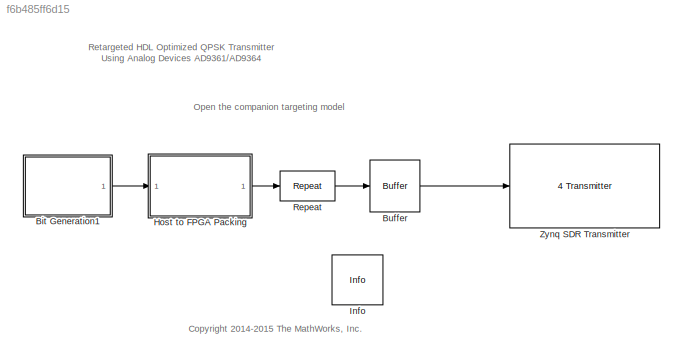
MODEL slx_f6b485ff6d15
KIND model
CONFIG AbsTol = auto
CONFIG FixedStep = auto
CONFIG InitFcn = sdrzQPSKTxFPGAretarget_params = zynqRadioQPSKTxFPGAAD9361AD9364SL_init;
CONFIG MaxStep = auto
CONFIG MinStep = auto
CONFIG PreLoadFcn = sdrzQPSKTxFPGAretarget_params = zynqRadioQPSKTxFPGAAD9361AD9364SL_init;
CONFIG RelTol = 1e-3
CONFIG SampleTimeConstraint = Unconstrained
CONFIG Solver = FixedStepDiscrete
CONFIG SolverMode = SingleTasking
CONFIG SolverName = FixedStepDiscrete
CONFIG StartTime = 0.0
CONFIG StopTime = inf
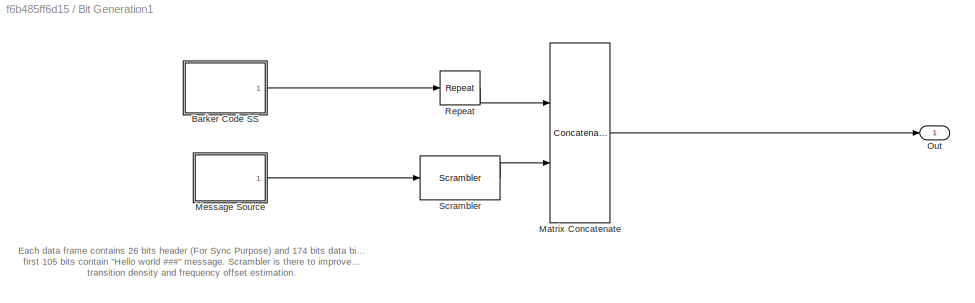
BLOCK [SubSystem] Bit Generation1
  Ports = [0, 1]
  RequestExecContextInheritance = off
  Variant = off
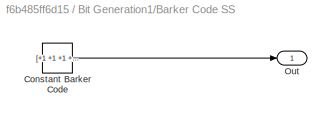
BLOCK [SubSystem] Bit Generation1/Barker Code SS
  Ports = [0, 1]
  RequestExecContextInheritance = off
  Variant = off
BLOCK [Constant] Bit Generation1/Barker Code SS/Constant Barker Code
  OutDataTypeStr = double
  Value = [+1 +1 +1 +1 +1 -1 -1 +1 +1 -1 +1 -1 +1\n].' > 0  % Bipolar to Unipolar Conversion
  VectorParams1D = off
BLOCK [Outport] Bit Generation1/Barker Code SS/Out
  IconDisplay = Port number
BLOCK [Concatenate] Bit Generation1/Matrix Concatenate
  Mode = Multidimensional array
  Ports = [2, 1]
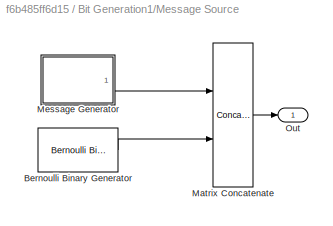
BLOCK [SubSystem] Bit Generation1/Message Source
  Ports = [0, 1]
  RequestExecContextInheritance = off
  Variant = off
BLOCK [Reference] Bit Generation1/Message Source/Bernoulli Binary Generator  REF=commrandsrc3/Bernoulli Binary
Generator
  Ports = [0, 1]
  SourceBlock = commrandsrc3/Bernoulli Binary\nGenerator
  SourceType = Bernoulli Binary Generator
BLOCK [Concatenate] Bit Generation1/Message Source/Matrix Concatenate
  Mode = Multidimensional array
  Ports = [2, 1]
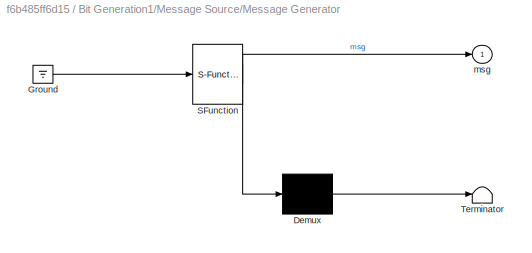
BLOCK [SubSystem] Bit Generation1/Message Source/Message Generator
  ErrorFcn = Stateflow.Translate.translate
  PermitHierarchicalResolution = ExplicitOnly
  Ports = [0, 1]
  RequestExecContextInheritance = off
  SFBlockType = MATLAB Function
  TreatAsAtomicUnit = on
  Variant = off
BLOCK [Demux] Bit Generation1/Message Source/Message Generator/ Demux 
  Outputs = 1
  Ports = [1, 1]
BLOCK [Ground] Bit Generation1/Message Source/Message Generator/ Ground 
BLOCK [S-Function] Bit Generation1/Message Source/Message Generator/ SFunction 
  EnableBusSupport = off
  FunctionName = sf_sfun
  PortCounts = [1 2]
  Ports = [1, 2]
  SFunctionDeploymentMode = off
  Tag = Stateflow S-Function zynqRadioQPSKTxFPGAAD9361AD9364RetargetSL 1
BLOCK [Terminator] Bit Generation1/Message Source/Message Generator/ Terminator 
BLOCK [Outport] Bit Generation1/Message Source/Message Generator/msg
  IconDisplay = Port number
BLOCK [Outport] Bit Generation1/Message Source/Out
  IconDisplay = Port number
BLOCK [Outport] Bit Generation1/Out
  IconDisplay = Port number
BLOCK [Reference] Bit Generation1/Repeat  REF=dspsigops/Repeat
  Ports = [1, 1]
  SourceBlock = dspsigops/Repeat
  SourceType = Repeat
  UserDataPersistent = on
BLOCK [Reference] Bit Generation1/Scrambler  REF=commsequence2/Scrambler
  Ports = [1, 1]
  SourceBlock = commsequence2/Scrambler
  SourceType = Scrambler
BLOCK [Buffer] Buffer
  N = 4000
  OutputFrames = off
  TreatMby1Signals = One channel
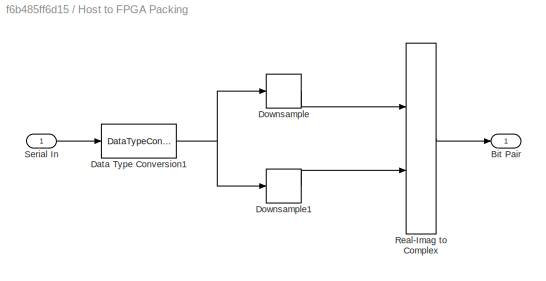
BLOCK [SubSystem] Host to FPGA Packing
  Ports = [1, 1]
  RequestExecContextInheritance = off
  Variant = off
BLOCK [Outport] Host to FPGA Packing/Bit Pair
  IconDisplay = Port number
BLOCK [DataTypeConversion] Host to FPGA Packing/Data Type Conversion1
  OutDataTypeStr = int16
  RndMeth = Floor
  SaturateOnIntegerOverflow = off
BLOCK [DownSample] Host to FPGA Packing/Downsample
  RateOptions = Allow multirate processing
  UserDataPersistent = on
BLOCK [DownSample] Host to FPGA Packing/Downsample1
  RateOptions = Allow multirate processing
  UserDataPersistent = on
  phase = 1
BLOCK [RealImagToComplex] Host to FPGA Packing/Real-Imag to Complex
  Ports = [2, 1]
BLOCK [Inport] Host to FPGA Packing/Serial In
  IconDisplay = Port number
BLOCK [Reference] Info  REF=sdrzblksprivate/Info
  Ports = []
  SourceBlock = sdrzblksprivate/Info
  SourceType = Info
BLOCK [Reference] Repeat  REF=dspsigops/Repeat
  Ports = [1, 1]
  SourceBlock = dspsigops/Repeat
  SourceType = Repeat
  UserDataPersistent = on
BLOCK [Reference] Zynq SDR Transmitter  REF=zc706fmc234_lib/ZC706 and 
FMCOMMS2//3//4 
Transmitter
  Ports = [1]
  SourceBlock = zc706fmc234_lib/ZC706 and \nFMCOMMS2//3//4 \nTransmitter
  SourceType = comm.internal.SDRTxZC706FMC234SL
ANNOTATION (root): <copyright redacted>
ANNOTATION (root): Open the companion targeting model
ANNOTATION (root): Retargeted HDL Optimized QPSK Transmitter Using Analog Devices AD9361/AD9364
ANNOTATION Bit Generation1: Each data frame contains 26 bits header (For Sync Purpose) and 174 bits data bits, first 105 bits contain "Hello world ###" message. Scrambler is there to improve data transition density and frequency offset estimation.
LINE Bit Generation1/Barker Code SS/Constant Barker Code:1 -> Bit Generation1/Barker Code SS/Out:1
LINE Bit Generation1/Barker Code SS:1 -> Bit Generation1/Repeat:1
LINE Bit Generation1/Matrix Concatenate:1 -> Bit Generation1/Out:1
LINE Bit Generation1/Message Source/Bernoulli Binary Generator:1 -> Bit Generation1/Message Source/Matrix Concatenate:2
LINE Bit Generation1/Message Source/Matrix Concatenate:1 -> Bit Generation1/Message Source/Out:1
LINE Bit Generation1/Message Source/Message Generator:1 -> Bit Generation1/Message Source/Matrix Concatenate:1
LINE Bit Generation1/Message Source:1 -> Bit Generation1/Scrambler:1
LINE Bit Generation1/Repeat:1 -> Bit Generation1/Matrix Concatenate:1
LINE Bit Generation1/Scrambler:1 -> Bit Generation1/Matrix Concatenate:2
LINE Bit Generation1:1 -> Host to FPGA Packing:1
LINE Buffer:1 -> Zynq SDR Transmitter:1
NET Host to FPGA Packing/Data Type Conversion1:1 -> Host to FPGA Packing/Downsample1:1, Host to FPGA Packing/Downsample:1
LINE Host to FPGA Packing/Downsample1:1 -> Host to FPGA Packing/Real-Imag to Complex:2
LINE Host to FPGA Packing/Downsample:1 -> Host to FPGA Packing/Real-Imag to Complex:1
LINE Host to FPGA Packing/Real-Imag to Complex:1 -> Host to FPGA Packing/Bit Pair:1
LINE Host to FPGA Packing/Serial In:1 -> Host to FPGA Packing/Data Type Conversion1:1
LINE Host to FPGA Packing:1 -> Repeat:1
LINE Repeat:1 -> Buffer:1
note: NET lines group one-source signal fan-out (src -> all destinations, sorted); 1:1 wires keep LINE
CHART Bit Generation1/Message Source/Message Generator states=1 transitions=1
  STATE_LABEL 'eML_blk_kernel()'
  STATE_LABEL "SCRIPT:\nfunction msg = genMsg\n%#codegen\npersistent msgStrSet count;\nif isempty(msgStrSet)\n    count = 0;\n    msgStrSet = ['Hello world 000';...\n              'Hello world 001';...\n              'Hello world 002';...\n              'Hello world 003';...\n              'Hello world 004';...\n              'Hello world 005';...\n              'Hello world 006';...\n              'Hello world 007';...\n    ...<+3462ch>"
